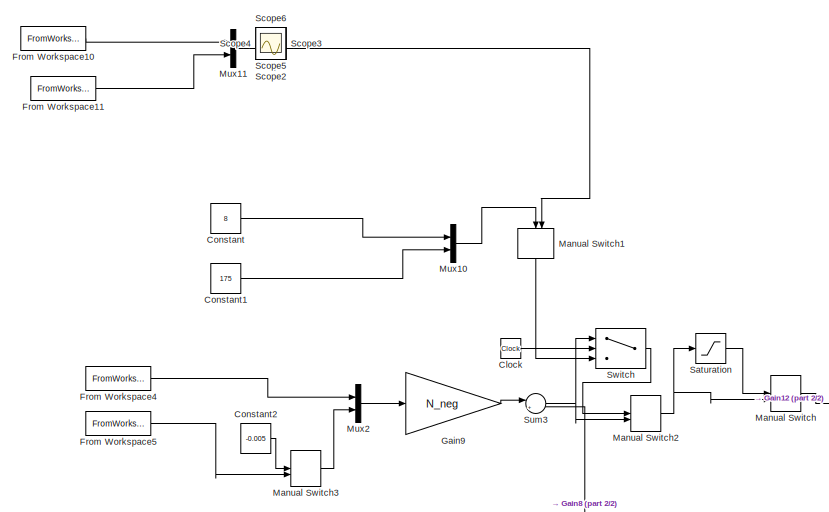
[diagram: root canvas - part 1/2, top left region]
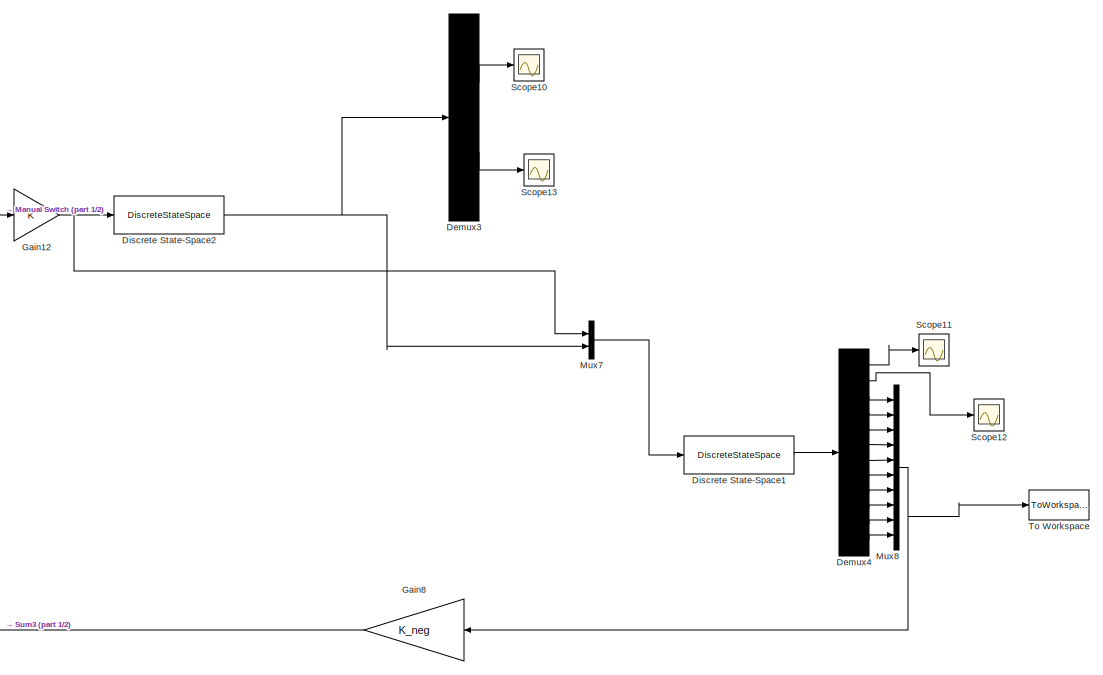
[diagram: root canvas - part 2/2, right side, full height]
MODEL slx_33a04b5ed5a0
KIND model
CONFIG AbsTol = auto
CONFIG EnableMultiTasking = off
CONFIG FixedStep = auto
CONFIG MaxStep = auto
CONFIG MinStep = auto
CONFIG RelTol = 1e-3
CONFIG SampleTimeConstraint = Unconstrained
CONFIG Solver = VariableStepAuto
CONFIG SolverName = VariableStepAuto
CONFIG StartTime = startTimesmlk
CONFIG StopTime = 0.045
BLOCK [Clock] Clock
BLOCK [Constant] Constant
  Value = 8
BLOCK [Constant] Constant1
  Value = 175
BLOCK [Constant] Constant2
  Value = -0.005
BLOCK [Demux] Demux3
  DisplayOption = bar
  Outputs = 2
  Ports = [1, 2]
BLOCK [Demux] Demux4
  DisplayOption = bar
  Outputs = 12
  Ports = [1, 12]
BLOCK [DiscreteStateSpace] Discrete State-Space1
  A = sys_negKAL.A
  B = sys_negKAL.B
  C = sys_negKAL.C
  D = sys_negKAL.D
  InitialCondition = x0_neg
  SampleTime = 100e-6
BLOCK [DiscreteStateSpace] Discrete State-Space2
  A = ss_neg.A
  B = ss_neg.B
  C = ss_neg.C
  D = ss_neg.D
  InitialCondition = x0_neg
  SampleTime = 100e-6
BLOCK [FromWorkspace] From Workspace10
  VariableName = Vert_smlnk
  ZeroCross = on
BLOCK [FromWorkspace] From Workspace11
  VariableName = Hor_smlnk
  ZeroCross = on
BLOCK [FromWorkspace] From Workspace4
  SampleTime = 0
  VariableName = 0.015*refR
  ZeroCross = on
BLOCK [FromWorkspace] From Workspace5
  SampleTime = 0
  VariableName = 0.005*refz
  ZeroCross = on
BLOCK [Gain] Gain12
  OutDataTypeStr = Inherit: Inherit via internal rule
  ParamDataTypeStr = Inherit: Inherit via internal rule
  SaturateOnIntegerOverflow = off
BLOCK [Gain] Gain8
  Gain = K_neg
  Multiplication = Matrix(K*u)
  OutDataTypeStr = Inherit: Inherit via internal rule
  ParamDataTypeStr = Inherit: Inherit via internal rule
  SaturateOnIntegerOverflow = off
BLOCK [Gain] Gain9
  Gain = N_neg
  Multiplication = Matrix(K*u)
  OutDataTypeStr = Inherit: Inherit via internal rule
  ParamDataTypeStr = Inherit: Inherit via internal rule
  SaturateOnIntegerOverflow = off
BLOCK [ManualSwitch] Manual Switch
BLOCK [ManualSwitch] Manual Switch1
  CurrentSetting = 0
BLOCK [ManualSwitch] Manual Switch2
  CurrentSetting = 0
BLOCK [ManualSwitch] Manual Switch3
BLOCK [Mux] Mux10
  DisplayOption = bar
  Inputs = 2
  Ports = [2, 1]
BLOCK [Mux] Mux11
  DisplayOption = bar
  Inputs = 2
  Ports = [2, 1]
BLOCK [Mux] Mux2
  DisplayOption = bar
  Inputs = 2
  Ports = [2, 1]
BLOCK [Mux] Mux7
  DisplayOption = bar
  Inputs = 2
  Ports = [2, 1]
BLOCK [Mux] Mux8
  DisplayOption = bar
  Inputs = 10
  Ports = [10, 1]
BLOCK [Saturate] Saturation
  InputPortMap = u0
  LowerLimit = [-300,-175]
  Ports = [1, 1]
  UpperLimit = [300,175]
BLOCK [Scope] Scope
  Floating = off
  IOType = viewer
  NumInputPorts = 1
  Ports = []
  ScopeSpecificationString = Simulink.scopes.TimeScopeBlockCfg('CurrentConfiguration', extmgr.ConfigurationSet(extmgr.Configuration('Core','General UI',true),extmgr.Configuration('Core','Source UI',true),extmgr.Configuration('Sources','WiredSimulink',true,'DataLoggingVariableName','ScopeData4'),extmgr.Configuration('Visuals','Time Domain',true,'SerializedDisplays',{struct('MinYLimReal','-34471.09727','MaxYLimReal','4156.00111...<+1457ch>
BLOCK [Scope] Scope1
  Floating = off
  IOType = viewer
  NumInputPorts = 1
  Ports = []
  ScopeSpecificationString = Simulink.scopes.TimeScopeBlockCfg('CurrentConfiguration', extmgr.ConfigurationSet(extmgr.Configuration('Core','General UI',true),extmgr.Configuration('Core','Source UI',true),extmgr.Configuration('Sources','WiredSimulink',true,'DataLoggingVariableName','ScopeData5'),extmgr.Configuration('Visuals','Time Domain',true,'SerializedDisplays',{struct('MinYLimReal','-317.34677','MaxYLimReal','1225.75996',...<+1393ch>
BLOCK [Scope] Scope10
  Floating = off
  NumInputPorts = 1
  Ports = [1]
  ScopeSpecificationString = Simulink.scopes.TimeScopeBlockCfg('CurrentConfiguration', extmgr.ConfigurationSet(extmgr.Configuration('Core','General UI',true),extmgr.Configuration('Core','Source UI',true),extmgr.Configuration('Sources','WiredSimulink',true,'DataLoggingVariableName','ScopeData1'),extmgr.Configuration('Visuals','Time Domain',true,'SerializedDisplays',{struct('MinYLimReal','0.00003','MaxYLimReal','0.06941','YLabe...<+1437ch>
BLOCK [Scope] Scope11
  Floating = off
  NumInputPorts = 1
  Ports = [1]
  ScopeSpecificationString = Simulink.scopes.TimeScopeBlockCfg('CurrentConfiguration', extmgr.ConfigurationSet(extmgr.Configuration('Core','General UI',true),extmgr.Configuration('Core','Source UI',true),extmgr.Configuration('Sources','WiredSimulink',true,'DataLoggingVariableName','ScopeData2'),extmgr.Configuration('Visuals','Time Domain',true,'SerializedDisplays',{struct('MinYLimReal','0.00072','MaxYLimReal','0.06035','YLabe...<+1438ch>
BLOCK [Scope] Scope12
  Floating = off
  NumInputPorts = 1
  Ports = [1]
  ScopeSpecificationString = Simulink.scopes.TimeScopeBlockCfg('CurrentConfiguration', extmgr.ConfigurationSet(extmgr.Configuration('Core','General UI',true),extmgr.Configuration('Core','Source UI',true),extmgr.Configuration('Sources','WiredSimulink',true,'DataLoggingVariableName','ScopeData3'),extmgr.Configuration('Visuals','Time Domain',true,'SerializedDisplays',{struct('MinYLimReal','-0.03588','MaxYLimReal','0.03308','YLab...<+1440ch>
BLOCK [Scope] Scope13
  Floating = off
  NumInputPorts = 1
  Ports = [1]
  ScopeSpecificationString = Simulink.scopes.TimeScopeBlockCfg('CurrentConfiguration', extmgr.ConfigurationSet(extmgr.Configuration('Core','General UI',true),extmgr.Configuration('Core','Source UI',true),extmgr.Configuration('Sources','WiredSimulink',true),extmgr.Configuration('Visuals','Time Domain',true,'SerializedDisplays',{struct('MinYLimReal','-0.02896','MaxYLimReal','-0.00271','YLabelReal','','MinYLimMag','0.00000','Max...<+1403ch>
BLOCK [Scope] Scope2
  Floating = off
  IOType = viewer
  NumInputPorts = 1
  Ports = []
  ScopeSpecificationString = Simulink.scopes.TimeScopeBlockCfg('CurrentConfiguration', extmgr.ConfigurationSet(extmgr.Configuration('Core','General UI',true),extmgr.Configuration('Core','Source UI',true),extmgr.Configuration('Sources','WiredSimulink',true,'DataLoggingVariableName','ScopeData6'),extmgr.Configuration('Visuals','Time Domain',true,'SerializedDisplays',{struct('MinYLimReal','-262.87669','MaxYLimReal','491.22288','...<+1413ch>
BLOCK [Scope] Scope3
  Floating = off
  IOType = viewer
  NumInputPorts = 1
  Ports = []
  ScopeSpecificationString = Simulink.scopes.TimeScopeBlockCfg('CurrentConfiguration', extmgr.ConfigurationSet(extmgr.Configuration('Core','General UI',true),extmgr.Configuration('Core','Source UI',true),extmgr.Configuration('Sources','WiredSimulink',true,'DataLoggingVariableName','ScopeData1'),extmgr.Configuration('Visuals','Time Domain',true,'SerializedDisplays',{struct('MinYLimReal','0.005','MaxYLimReal','0.025','YLabelRea...<+1410ch>
BLOCK [Scope] Scope4
  Floating = off
  IOType = viewer
  NumInputPorts = 1
  Ports = []
  ScopeSpecificationString = Simulink.scopes.TimeScopeBlockCfg('CurrentConfiguration', extmgr.ConfigurationSet(extmgr.Configuration('Core','General UI',true),extmgr.Configuration('Core','Source UI',true),extmgr.Configuration('Sources','WiredSimulink',true,'DataLoggingVariableName','ScopeData2'),extmgr.Configuration('Visuals','Time Domain',true,'SerializedDisplays',{struct('MinYLimReal','0.004','MaxYLimReal','0.006','YLabelRea...<+1410ch>
BLOCK [Scope] Scope5
  Floating = off
  IOType = viewer
  NumInputPorts = 1
  Ports = []
  ScopeSpecificationString = Simulink.scopes.TimeScopeBlockCfg('CurrentConfiguration', extmgr.ConfigurationSet(extmgr.Configuration('Core','General UI',true),extmgr.Configuration('Core','Source UI',true),extmgr.Configuration('Sources','WiredSimulink',true,'DataLoggingVariableName','ScopeData3'),extmgr.Configuration('Visuals','Time Domain',true,'SerializedDisplays',{struct('MinYLimReal','-248.40008','MaxYLimReal','360.93334','...<+1446ch>
BLOCK [Scope] Scope6
  Floating = off
  IOType = viewer
  NumInputPorts = 1
  Ports = []
  ScopeSpecificationString = Simulink.scopes.TimeScopeBlockCfg('CurrentConfiguration', extmgr.ConfigurationSet(extmgr.Configuration('Core','General UI',true),extmgr.Configuration('Core','Source UI',true),extmgr.Configuration('Sources','WiredSimulink',true,'DataLoggingVariableName','ScopeData4'),extmgr.Configuration('Visuals','Time Domain',true,'SerializedDisplays',{struct('MinYLimReal','-0.006','MaxYLimReal','-0.004','YLabelR...<+1363ch>
BLOCK [Sum] Sum3
  IconShape = round
  InputSameDT = off
  Inputs = |+-
  OutDataTypeStr = Inherit: Inherit via internal rule
  Ports = [2, 1]
  SaturateOnIntegerOverflow = off
BLOCK [Switch] Switch
  InputSameDT = off
  SaturateOnIntegerOverflow = off
  Threshold = startTime+0.0
BLOCK [ToWorkspace] To Workspace
  FixptAsFi = on
  MaxDataPoints = inf
  Ports = [1]
  SampleTime = -1
  Save2DSignal = 3-D array (concatenate along third dimension)
  SaveFormat = Structure With Time
  VariableName = KalmanX
LINE Clock:1 -> Switch:2
LINE Constant1:1 -> Mux10:2
LINE Constant2:1 -> Manual Switch3:1
LINE Constant:1 -> Mux10:1
LINE Demux3:1 -> Scope10:1
LINE Demux3:2 -> Scope13:1
LINE Demux4:1 -> Scope11:1
LINE Demux4:10 -> Mux8:8
LINE Demux4:11 -> Mux8:9
LINE Demux4:12 -> Mux8:10
LINE Demux4:2 -> Scope12:1
LINE Demux4:3 -> Mux8:1
LINE Demux4:4 -> Mux8:2
LINE Demux4:5 -> Mux8:3
LINE Demux4:6 -> Mux8:4
LINE Demux4:7 -> Mux8:5
LINE Demux4:8 -> Mux8:6
LINE Demux4:9 -> Mux8:7
LINE Discrete State-Space1:1 -> Demux4:1
NET Discrete State-Space2:1 -> Demux3:1, Mux7:2
LINE From Workspace10:1 -> Mux11:1
LINE From Workspace11:1 -> Mux11:2
LINE From Workspace4:1 -> Mux2:1
LINE From Workspace5:1 -> Manual Switch3:2
NET Gain12:1 -> Discrete State-Space2:1, Mux7:1
LINE Gain8:1 -> Sum3:2
LINE Gain9:1 -> Sum3:1
LINE Manual Switch1:1 -> Switch:3
NET Manual Switch2:1 -> Manual Switch:2, Saturation:1
LINE Manual Switch3:1 -> Mux2:2
LINE Manual Switch:1 -> Gain12:1
LINE Mux10:1 -> Manual Switch1:1
LINE Mux11:1 -> Manual Switch1:2
LINE Mux2:1 -> Gain9:1
LINE Mux7:1 -> Discrete State-Space1:1
NET Mux8:1 -> Gain8:1, To Workspace:1
LINE Saturation:1 -> Manual Switch:1
NET Sum3:1 -> Manual Switch2:2, Switch:1
LINE Switch:1 -> Manual Switch2:1
note: NET lines group one-source signal fan-out (src -> all destinations, sorted); 1:1 wires keep LINE
